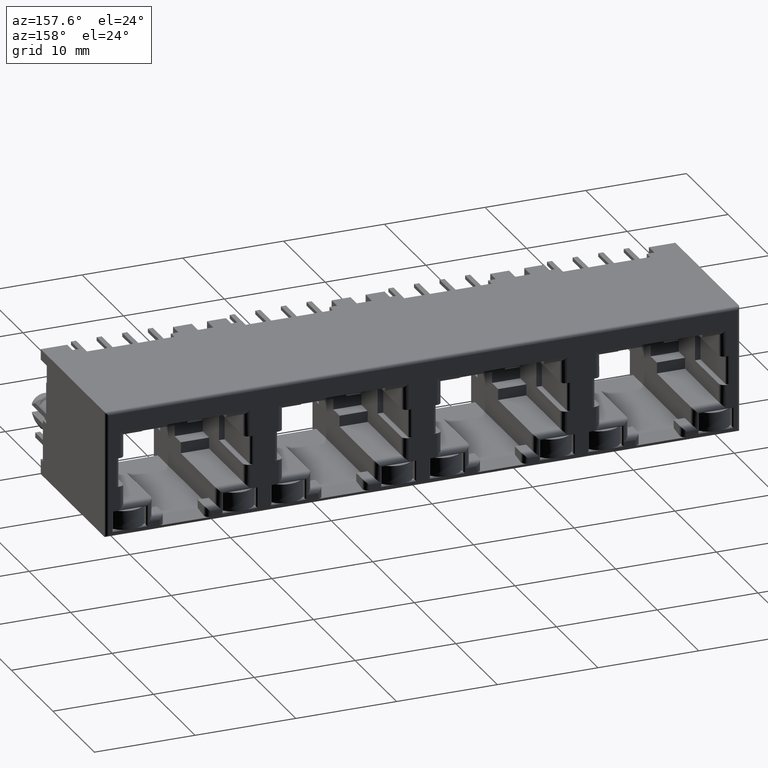
[diagram: clean part render]
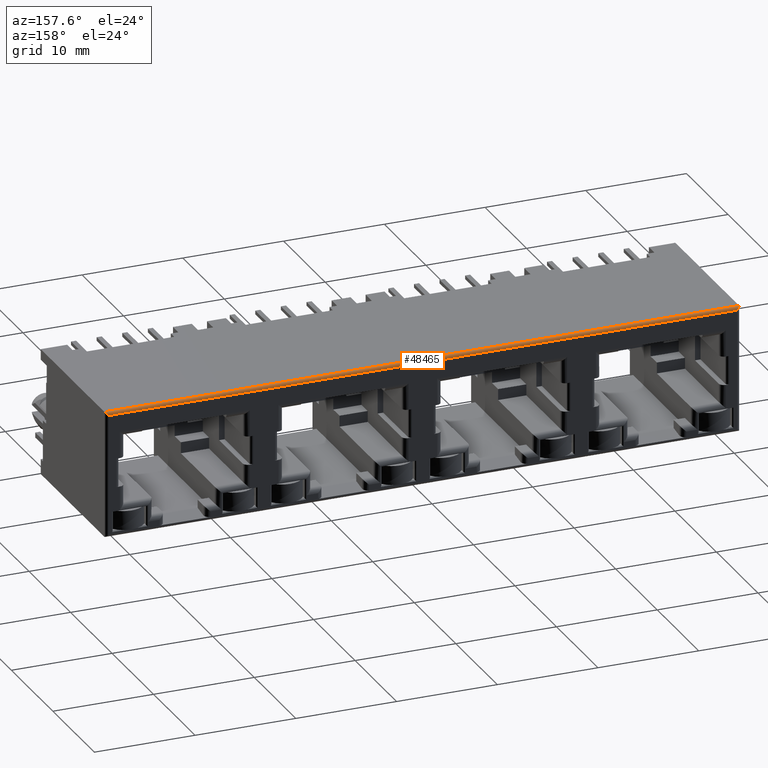
[diagram: same view with one face highlighted and labeled with its STEP entity id]
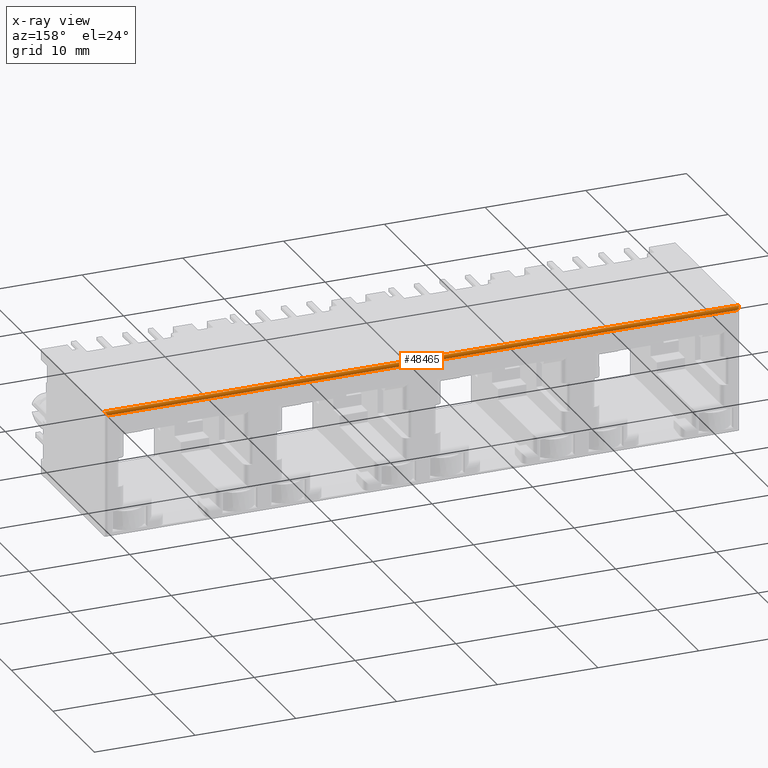
[diagram: x-ray of the same camera — body ghosted, the highlighted face saturated]
A machine part, auxiliary view. The second image highlights one B-rep face of the part: STEP entity #48465.
The next image is the same camera in x-ray: the body ghosted, the highlighted face saturated — about 0% of this face is hidden behind the body in this view.
In plain terms, the highlighted cylindrical surface (edge-blend (fillet) strip) has radius 0.3 mm, axis along (1, 0, 0).
Its self-contained STEP definition (entity closure, byte-faithful):
#2627 = CARTESIAN_POINT ( 'NONE',  ( -31.37162124110134800, 7.749361590918365300, 6.170420319536033200 ) ) ;
#2886 = CARTESIAN_POINT ( 'NONE',  ( 31.40660472100647400, 7.717549303607382800, 6.206523253073061900 ) ) ;
#3128 = CARTESIAN_POINT ( 'NONE',  ( 31.35332755376254400, 7.758645987294748600, 6.152088332549989300 ) ) ;
#6376 = CARTESIAN_POINT ( 'NONE',  ( -31.20000000000000600, 7.800000000000000700, 6.000000000000000000 ) ) ;
#7505 = CYLINDRICAL_SURFACE ( 'NONE', #40684, 0.2999999999999999300 ) ;
#7619 = CARTESIAN_POINT ( 'NONE',  ( -31.50000000000000000, 7.500000000000000000, 6.299999999999999800 ) ) ;
#13087 = CARTESIAN_POINT ( 'NONE',  ( 31.38914850680926700, 7.733012247247187600, 6.188668887985827800 ) ) ;
#14014 = CARTESIAN_POINT ( 'NONE',  ( 31.40388151312837600, 7.720106890152987200, 6.203748210272948400 ) ) ;
#16992 = CARTESIAN_POINT ( 'NONE',  ( -10.50000000000000200, 7.499999999999999100, 6.299999999999999800 ) ) ;
#17004 = VERTEX_POINT ( 'NONE', #64333 ) ;
#17808 = CARTESIAN_POINT ( 'NONE',  ( -31.29947526774536100, 7.785901599382546200, 6.098076188191884100 ) ) ;
#18116 = ORIENTED_EDGE ( 'NONE', *, *, #43046, .T. ) ;
#19840 = CARTESIAN_POINT ( 'NONE',  ( -31.87800000000000400, 7.500000000000000000, 6.000000000000000000 ) ) ;
#21736 = EDGE_CURVE ( 'NONE', #58443, #54719, #28188, .T. ) ;
#22129 = CARTESIAN_POINT ( 'NONE',  ( 10.50000000000000200, 7.499999999999999100, 6.299999999999999800 ) ) ;
#23193 = CARTESIAN_POINT ( 'NONE',  ( -31.41939756684283200, 7.704637637339855500, 6.219409564170821800 ) ) ;
#23396 = CARTESIAN_POINT ( 'NONE',  ( -10.40000000000000000, 7.799999999999999800, 6.000000000000000000 ) ) ;
#23717 = CARTESIAN_POINT ( 'NONE',  ( 31.50000000000000000, 7.500000000000000000, 6.299999999999999800 ) ) ;
#23945 = CARTESIAN_POINT ( 'NONE',  ( 31.36895832398071300, 7.748476447050955500, 6.168004936896644500 ) ) ;
#24908 = VERTEX_POINT ( 'NONE', #39460 ) ;
#28134 = CARTESIAN_POINT ( 'NONE',  ( 31.20000000000000600, 7.799999999999999800, 6.000000000000000000 ) ) ;
#28188 = B_SPLINE_CURVE_WITH_KNOTS ( 'NONE', 3,
 ( #7619, #61864, #40316, #29379, #46004, #67112, #67342, #34831, #28892, #23193, #61621, #2627, #17808, #34336, #40566 ),
 .UNSPECIFIED., .F., .F.,
 ( 4, 2, 2, 1, 2, 2, 2, 4 ),
 ( 0.0000000000000000000, 0.2500000000000456900, 0.3750000000000676100, 0.4375000000000786000, 0.4687500000000935400, 0.5000000000001084700, 0.7500000000000541800, 1.000000000000000000 ),
 .UNSPECIFIED. ) ;
#28892 = CARTESIAN_POINT ( 'NONE',  ( -31.42383320034569000, 7.699808570686052200, 6.223838330459480900 ) ) ;
#29151 = CARTESIAN_POINT ( 'NONE',  ( 31.47223785831331700, 7.649466539587143300, 6.272228965202070400 ) ) ;
#29379 = CARTESIAN_POINT ( 'NONE',  ( -31.47264738668099300, 7.626595346158207000, 6.272344131344152800 ) ) ;
#29866 = CARTESIAN_POINT ( 'NONE',  ( 31.20000000000000600, 7.799999999999999800, 6.000000000000000000 ) ) ;
#30695 = DIRECTION ( 'NONE',  ( 1.000000000000000000, 0.0000000000000000000, 0.0000000000000000000 ) ) ;
#33754 = FACE_OUTER_BOUND ( 'NONE', #69931, .T. ) ;
#34336 = CARTESIAN_POINT ( 'NONE',  ( -31.25332677024031400, 7.799999999999996300, 6.053326770237230600 ) ) ;
#34831 = CARTESIAN_POINT ( 'NONE',  ( -31.43033732893649900, 7.692274494915460900, 6.230320174675696000 ) ) ;
#35087 = CARTESIAN_POINT ( 'NONE',  ( 31.25323957823194500, 7.800000000000000700, 6.053239578231949000 ) ) ;
#35204 = ORIENTED_EDGE ( 'NONE', *, *, #21736, .F. ) ;
#36163 = B_SPLINE_CURVE_WITH_KNOTS ( 'NONE', 3,
 ( #6376, #23396, #44285, #28134 ),
 .UNSPECIFIED., .F., .F.,
 ( 4, 4 ),
 ( 0.0000000000000000000, 1.000000000000000000 ),
 .UNSPECIFIED. ) ;
#39098 = EDGE_CURVE ( 'NONE', #24908, #17004, #66193, .T. ) ;
#39460 = CARTESIAN_POINT ( 'NONE',  ( 31.20000000000000600, 7.799999999999999800, 6.000000000000000000 ) ) ;
#40316 = CARTESIAN_POINT ( 'NONE',  ( -31.49338387020463200, 7.573333629634093200, 6.293086032836035800 ) ) ;
#40566 = CARTESIAN_POINT ( 'NONE',  ( -31.20000000000000600, 7.800000000000000700, 6.000000000000000000 ) ) ;
#40592 = CARTESIAN_POINT ( 'NONE',  ( 31.29930597744770500, 7.785948710067169800, 6.097916608648438000 ) ) ;
#40684 = AXIS2_PLACEMENT_3D ( 'NONE', #19840, #30695, #62525 ) ;
#43046 = EDGE_CURVE ( 'NONE', #58443, #17004, #56537, .T. ) ;
#44204 = CARTESIAN_POINT ( 'NONE',  ( 31.50000000000000000, 7.500000000000000000, 6.299999999999999800 ) ) ;
#44285 = CARTESIAN_POINT ( 'NONE',  ( 10.40000000000000600, 7.799999999999999800, 6.000000000000000000 ) ) ;
#46004 = CARTESIAN_POINT ( 'NONE',  ( -31.46394858554807400, 7.643919993229065600, 6.263701672389198700 ) ) ;
#48465 = ADVANCED_FACE ( 'NONE', ( #33754 ), #7505, .T. ) ;
#53175 = CARTESIAN_POINT ( 'NONE',  ( -31.50000000000000000, 7.500000000000000000, 6.299999999999999800 ) ) ;
#53463 = ORIENTED_EDGE ( 'NONE', *, *, #68249, .F. ) ;
#54719 = VERTEX_POINT ( 'NONE', #59387 ) ;
#55208 = CARTESIAN_POINT ( 'NONE',  ( 31.41181465492164900, 7.712480027773541900, 6.211805759054059600 ) ) ;
#56537 = B_SPLINE_CURVE_WITH_KNOTS ( 'NONE', 3,
 ( #66045, #16992, #22129, #44204 ),
 .UNSPECIFIED., .F., .F.,
 ( 4, 4 ),
 ( 0.0000000000000000000, 1.000000000000000000 ),
 .UNSPECIFIED. ) ;
#58443 = VERTEX_POINT ( 'NONE', #53175 ) ;
#59387 = CARTESIAN_POINT ( 'NONE',  ( -31.20000000000000600, 7.800000000000000700, 6.000000000000000000 ) ) ;
#61621 = CARTESIAN_POINT ( 'NONE',  ( -31.39800264140451300, 7.727054334826066300, 6.198015032925531500 ) ) ;
#61864 = CARTESIAN_POINT ( 'NONE',  ( -31.49999999999998600, 7.536151180754712800, 6.300000000000002500 ) ) ;
#61891 = CARTESIAN_POINT ( 'NONE',  ( 31.41320328950843100, 7.711115056546005600, 6.213215516256465100 ) ) ;
#62525 = DIRECTION ( 'NONE',  ( 0.0000000000000000000, 0.0000000000000000000, -1.000000000000000000 ) ) ;
#64333 = CARTESIAN_POINT ( 'NONE',  ( 31.50000000000000000, 7.500000000000000000, 6.299999999999999800 ) ) ;
#66045 = CARTESIAN_POINT ( 'NONE',  ( -31.50000000000000000, 7.500000000000000000, 6.299999999999999800 ) ) ;
#66193 = B_SPLINE_CURVE_WITH_KNOTS ( 'NONE', 3,
 ( #29866, #35087, #40592, #3128, #23945, #13087, #67858, #14014, #2886, #55208, #61891, #29151, #67369, #23717 ),
 .UNSPECIFIED., .F., .F.,
 ( 4, 2, 2, 2, 2, 2, 4 ),
 ( 0.0000000000000000000, 0.2499999999999448800, 0.3749999999999179500, 0.4374999999999151800, 0.4687499999999137900, 0.4999999999999124000, 1.000000000000000000 ),
 .UNSPECIFIED. ) ;
#67112 = CARTESIAN_POINT ( 'NONE',  ( -31.44827425821028300, 7.668687129847222100, 6.248145246270284200 ) ) ;
#67342 = CARTESIAN_POINT ( 'NONE',  ( -31.43978249206968200, 7.680765248291165500, 6.239718848789206800 ) ) ;
#67369 = CARTESIAN_POINT ( 'NONE',  ( 31.50000000000000000, 7.572413477418697500, 6.299999999999999800 ) ) ;
#67858 = CARTESIAN_POINT ( 'NONE',  ( 31.39533972590843200, 7.727818457187678000, 6.195021712443754300 ) ) ;
#68249 = EDGE_CURVE ( 'NONE', #54719, #24908, #36163, .T. ) ;
#69510 = ORIENTED_EDGE ( 'NONE', *, *, #39098, .F. ) ;
#69931 = EDGE_LOOP ( 'NONE', ( #53463, #35204, #18116, #69510 ) ) ;